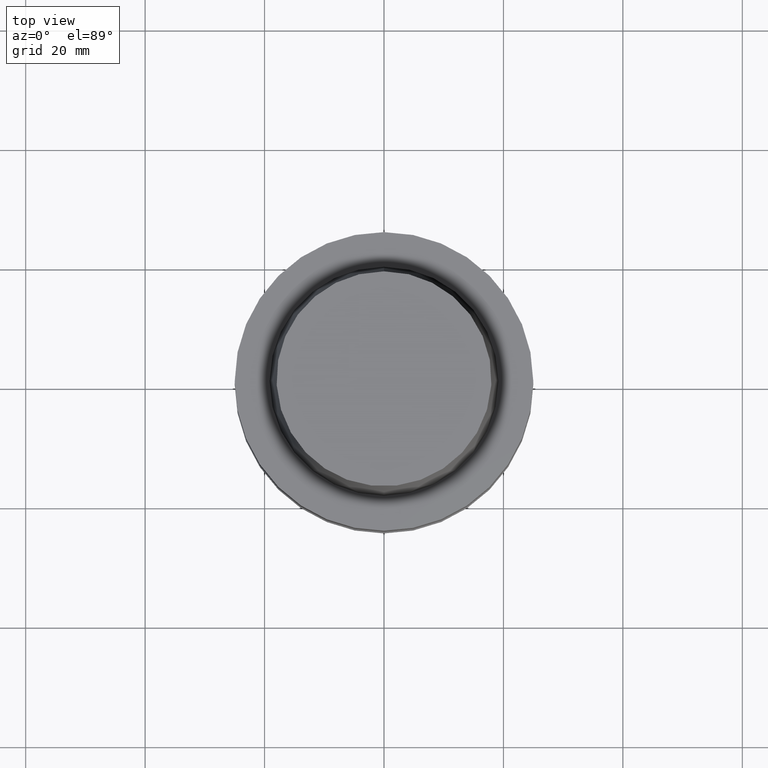
[diagram: clean part render]
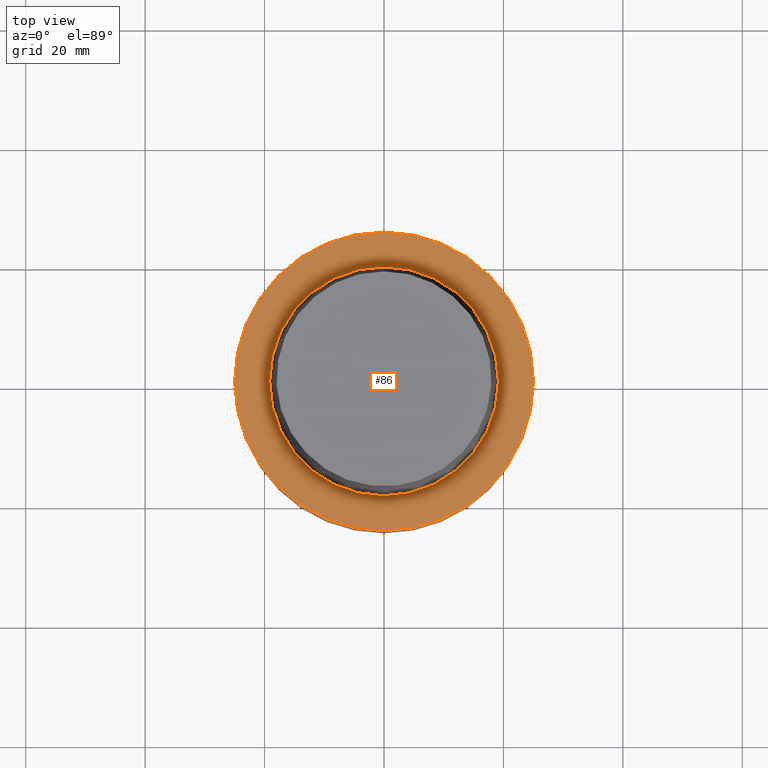
[diagram: same view with one face highlighted and labeled with its STEP entity id]
A machine part, top view. The second image highlights one B-rep face of the part: STEP entity #86.
In plain terms, the highlighted planar face has unit normal (-0, -0, 1).
Its self-contained STEP definition (entity closure, byte-faithful):
#86=ADVANCED_FACE('',(#128,#129),#130,.T.);
#128=FACE_OUTER_BOUND('',#189,.T.);
#129=FACE_BOUND('',#190,.T.);
#130=PLANE('',#191);
#189=EDGE_LOOP('',(#272));
#190=EDGE_LOOP('',(#273));
#191=AXIS2_PLACEMENT_3D('',#274,#275,#276);
#272=ORIENTED_EDGE('',*,*,#333,.F.);
#273=ORIENTED_EDGE('',*,*,#332,.T.);
#274=CARTESIAN_POINT('',(-2.72095382543029E-031,22.075,2.70340780911778E-015));
#275=DIRECTION('',(-6.12323399573677E-017,-1.22464679914735E-016,1.0));
#276=DIRECTION('',(1.23259516440783E-032,-1.0,-1.22464679914735E-016));
#332=EDGE_CURVE('',#362,#362,#363,.T.);
#333=EDGE_CURVE('',#364,#364,#365,.T.);
#362=VERTEX_POINT('',#402);
#363=CIRCLE('',#403,19.15);
#364=VERTEX_POINT('',#404);
#365=CIRCLE('',#405,25.0);
#402=CARTESIAN_POINT('',(-2.360419739841E-031,19.15,2.34519862036718E-015));
#403=AXIS2_PLACEMENT_3D('',#452,#453,#454);
#404=CARTESIAN_POINT('',(-3.08148791101958E-031,25.0,3.06161699786838E-015));
#405=AXIS2_PLACEMENT_3D('',#455,#456,#457);
#452=CARTESIAN_POINT('',(0.0,0.0,0.0));
#453=DIRECTION('',(6.12323399573677E-017,1.22464679914735E-016,-1.0));
#454=DIRECTION('',(-1.23259516440783E-032,1.0,1.22464679914735E-016));
#455=CARTESIAN_POINT('',(0.0,0.0,0.0));
#456=DIRECTION('',(6.12323399573677E-017,1.22464679914735E-016,-1.0));
#457=DIRECTION('',(-1.23259516440783E-032,1.0,1.22464679914735E-016));